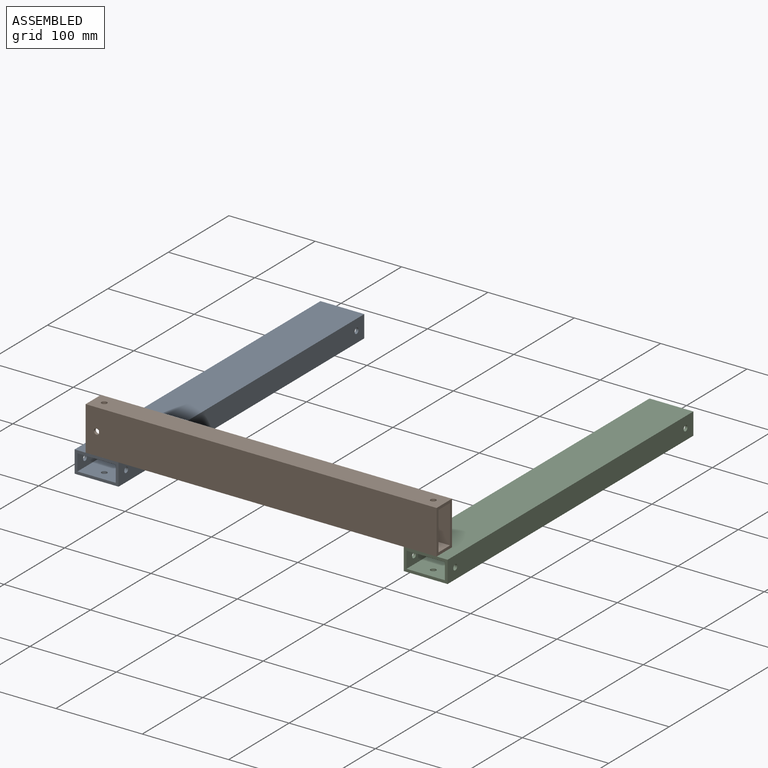
[diagram: assembled view]
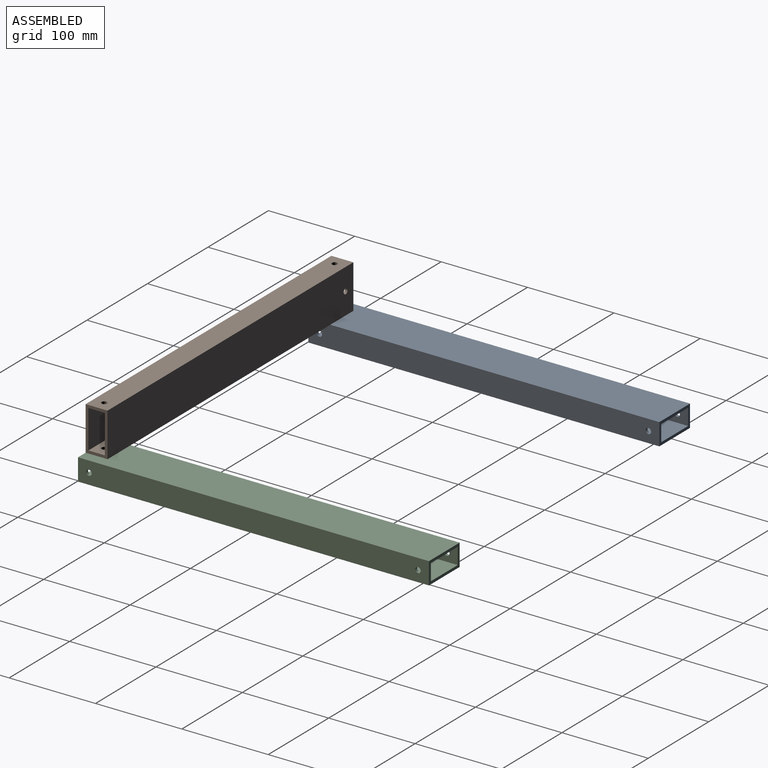
[diagram: assembled view, second angle]
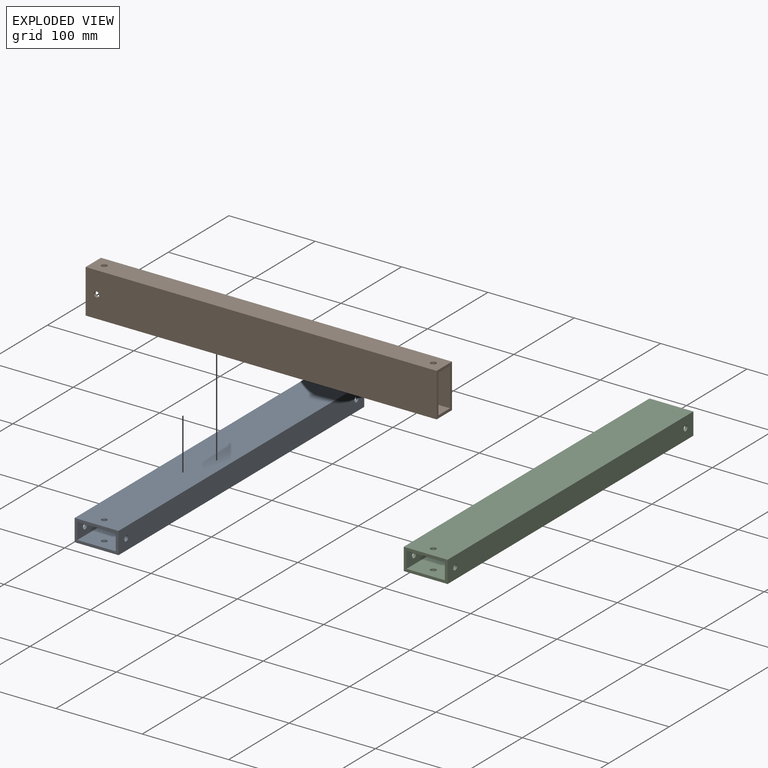
[diagram: exploded view]
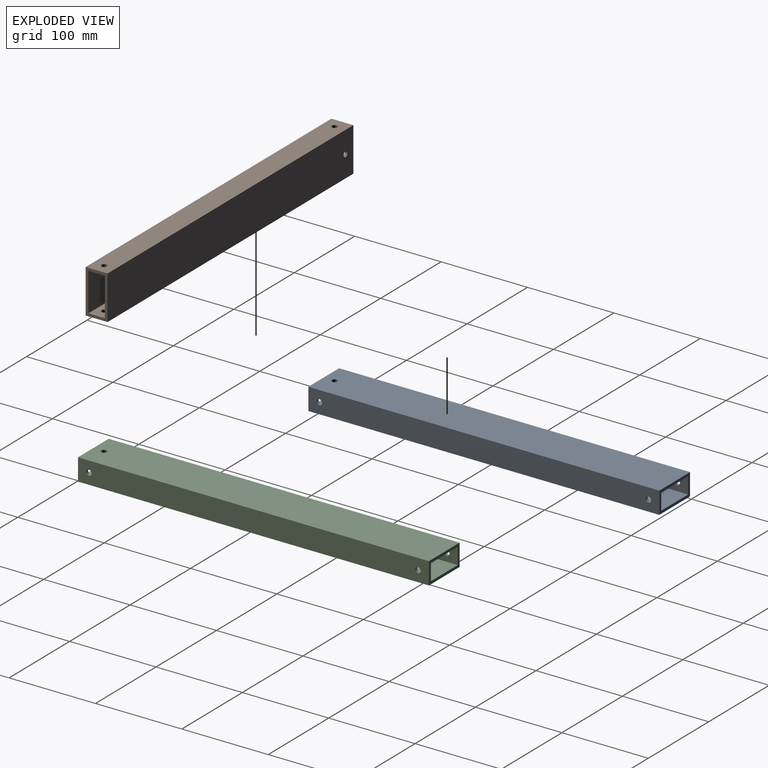
[diagram: exploded view, second angle]
ASSEMBLY  parts=3 mates=2
PART A: 16 faces, bbox 50.8x25.4x406.4 mm
  f0: plane 406.4x19.05mm, normal (-1,0,0), area 7678.6mm2, adj f1,f7,f8,f9,f10,f14
  f1: plane 406.4x44.45mm, normal (0,1,0), area 18032.8mm2, adj f0,f2,f8,f9,f13
  f2: plane 406.4x19.05mm, normal (1,0,0), area 7678.6mm2, adj f1,f7,f8,f9,f11,f15
  f3: plane 406.4x25.4mm, normal (-1,0,0), area 10259.2mm2, adj f4,f6,f8,f9,f11,f15
  f4: plane 406.4x50.8mm, normal (0,-1,0), area 20613.5mm2, adj f3,f5,f8,f9,f13
  f5: plane 406.4x25.4mm, normal (1,0,0), area 10259.2mm2, adj f4,f6,f8,f9,f10,f14
  f6: plane 406.4x50.8mm, normal (0,1,0), area 20613.5mm2, adj f3,f5,f8,f9,f12
  f7: plane 406.4x44.45mm, normal (0,-1,0), area 18032.8mm2, adj f0,f2,f8,f9,f12
  f8: plane 50.8x25.4mm, normal (0,0,1), area 443.5mm2, adj f0,f1,f2,f3,f4,f5,f6,f7
  f9: plane 50.8x25.4mm, normal (0,0,-1), area 443.5mm2, adj f0,f1,f2,f3,f4,f5,f6,f7
  f10: cylinder r=3.17mm len=6.35mm, axis (1,0,0), area 63.3mm2, adj f0,f5
  f11: cylinder r=3.17mm len=6.35mm, axis (1,0,0), area 63.3mm2, adj f2,f3
  f12: cylinder r=3.17mm len=6.35mm, axis (0,-1,0), area 63.3mm2, adj f6,f7
  f13: cylinder r=3.17mm len=6.35mm, axis (0,-1,0), area 63.3mm2, adj f1,f4
  f14: cylinder r=3.17mm len=6.35mm, axis (1,0,0), area 63.3mm2, adj f0,f5
  f15: cylinder r=3.17mm len=6.35mm, axis (1,0,0), area 63.3mm2, adj f2,f3
PART B: same geometry as A
PART C: same geometry as A
PLACE A rot(axis=(-1,0,0),90deg) t=(-288.37,-299.94,36.2)mm
PLACE B rot(axis=(0,1,0),90deg) t=(-275.67,-299.94,87)mm
PLACE C rot(axis=(-1,0,0),90deg) t=(92.63,-299.94,36.2)mm
MATE planar C.f4 <-> B.f5  axis (0,0,1) through (118.03,-96.44,36.2)mm
MATE planar A.f4 <-> B.f5  axis (0,0,1) through (-262.97,-96.44,36.2)mm
